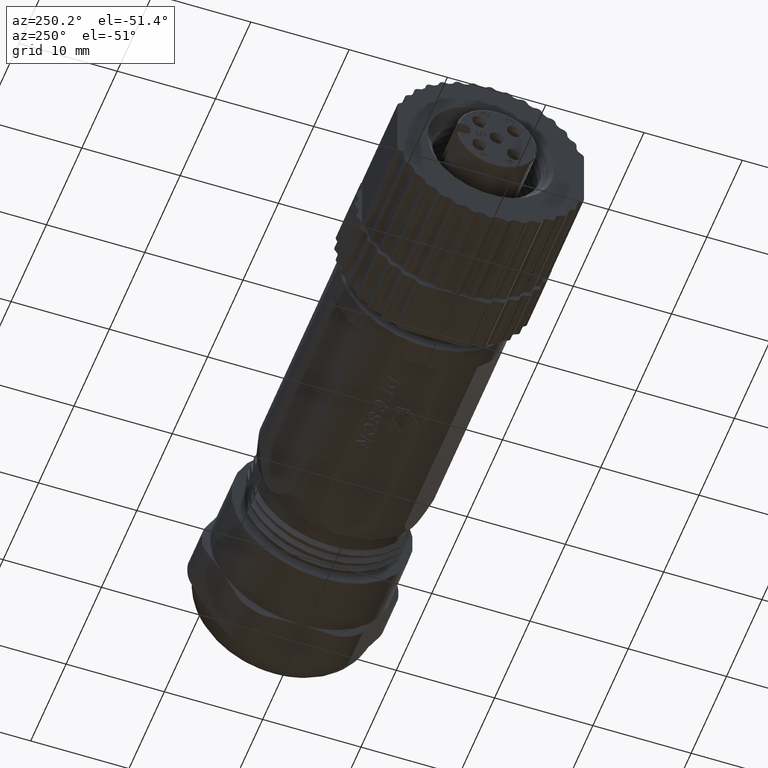
[diagram: clean part render]
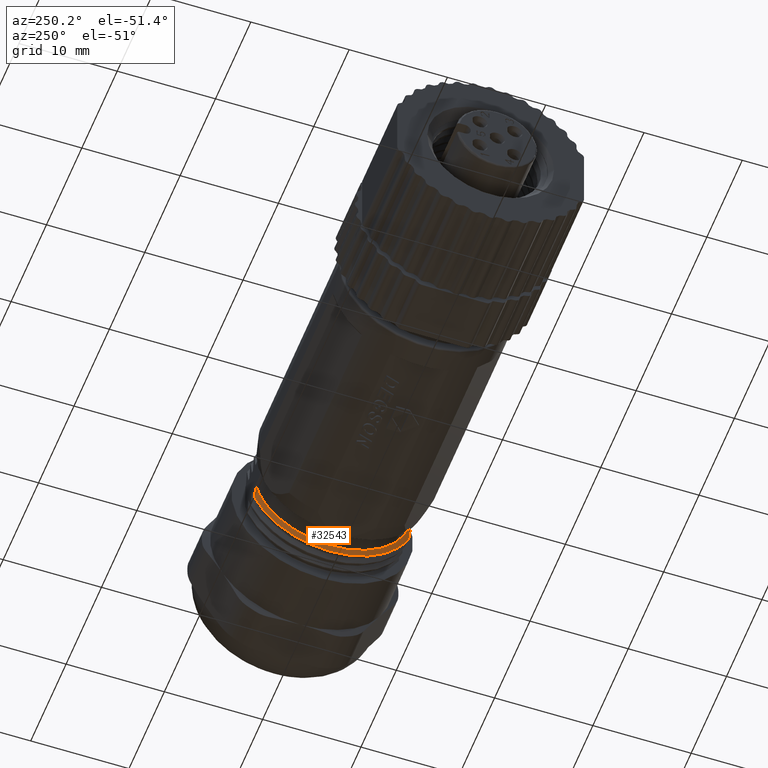
[diagram: same view with one face highlighted and labeled with its STEP entity id]
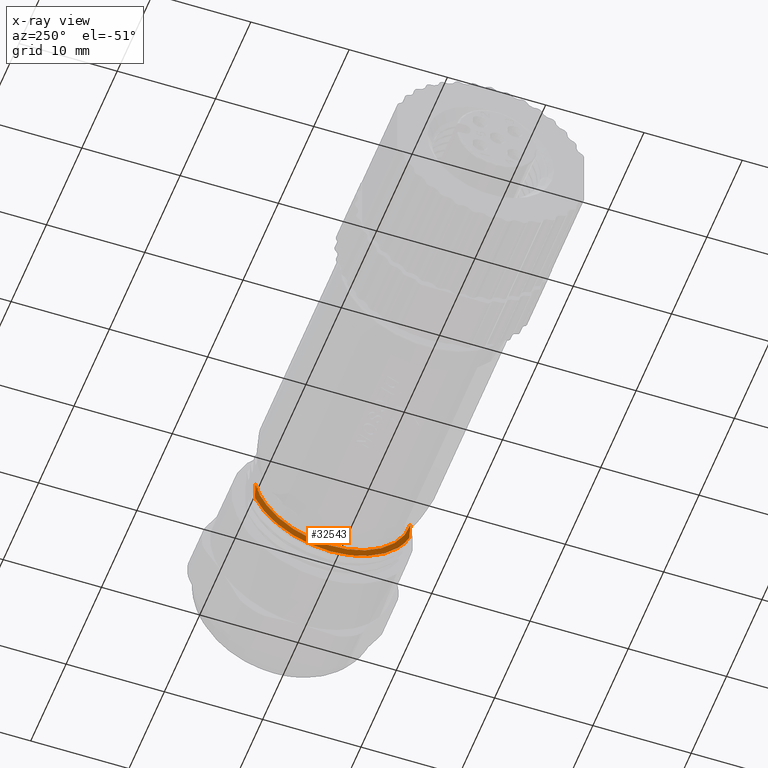
[diagram: x-ray of the same camera — body ghosted, the highlighted face saturated]
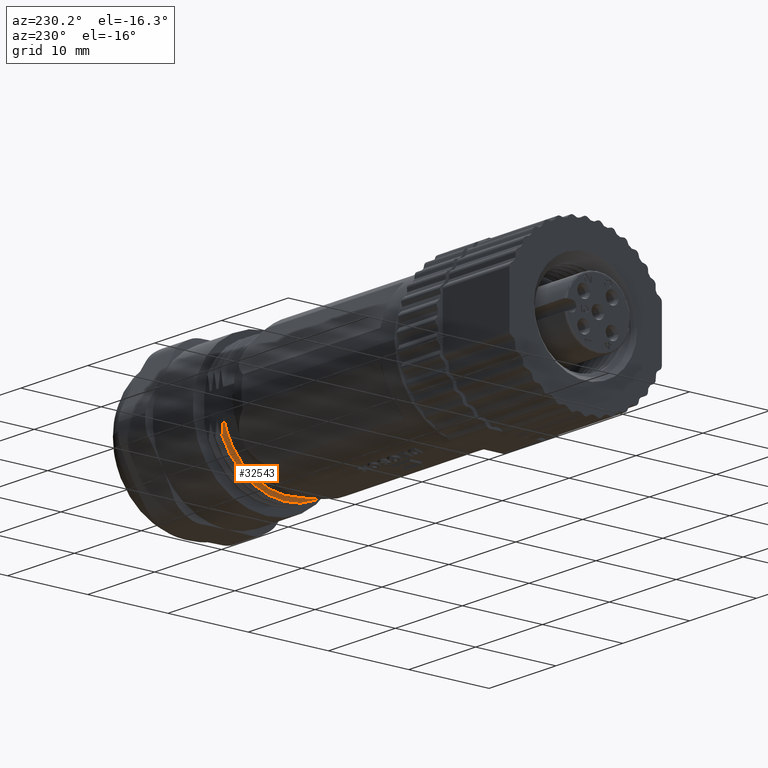
[diagram: same view with one face highlighted and labeled with its STEP entity id]
A machine part, auxiliary view. The second image highlights one B-rep face of the part: STEP entity #32543.
The next image is the same camera in x-ray: the body ghosted, the highlighted face saturated — about 0% of this face is hidden behind the body in this view.
A second angle (auxiliary view) of the same face is appended — the face is thin or edge-on in the first view.
In plain terms, the highlighted face is a freeform B-spline surface patch.
Its self-contained STEP definition (entity closure, byte-faithful):
#9730=CARTESIAN_POINT('',(3.988217319655E1,-7.8E0,-1.537042614894E0));
#9731=CARTESIAN_POINT('',(3.988622938492E1,-7.760827265154E0,
-1.735831723822E0));
#9732=CARTESIAN_POINT('',(3.989434176305E1,-7.667277161854E0,
-2.130413925739E0));
#9733=CARTESIAN_POINT('',(3.990651173885E1,-7.482124267198E0,
-2.709904072031E0));
#9734=CARTESIAN_POINT('',(3.991867890987E1,-7.253305691941E0,
-3.273430935080E0));
#9735=CARTESIAN_POINT('',(3.993084985475E1,-6.982023366341E0,
-3.817999617292E0));
#9736=CARTESIAN_POINT('',(3.994301607737E1,-6.670059743043E0,
-4.340054814193E0));
#9737=CARTESIAN_POINT('',(3.995518677476E1,-6.319003207922E0,
-4.836938348324E0));
#9738=CARTESIAN_POINT('',(3.996735319815E1,-5.931154682889E0,
-5.305391948316E0));
#9739=CARTESIAN_POINT('',(3.997952408130E1,-5.508502256607E0,
-5.743010569820E0));
#9740=CARTESIAN_POINT('',(3.999169032071E1,-5.053832469613E0,
-6.146916039850E0));
#9741=CARTESIAN_POINT('',(4.000386254210E1,-4.569398461834E0,
-6.515087306644E0));
#9742=CARTESIAN_POINT('',(4.001602751140E1,-4.058563086594E0,
-6.844987939677E0));
#9743=CARTESIAN_POINT('',(4.002820074232E1,-3.523657259895E0,
-7.135097202509E0));
#9744=CARTESIAN_POINT('',(4.004036474064E1,-2.968574920136E0,
-7.383314565797E0));
#9745=CARTESIAN_POINT('',(4.005253765957E1,-2.395736916434E0,
-7.588558784259E0));
#9746=CARTESIAN_POINT('',(4.006470187774E1,-1.809312547466E0,
-7.749332079425E0));
#9747=CARTESIAN_POINT('',(4.007687389480E1,-1.211940788953E0,
-7.864920629950E0));
#9748=CARTESIAN_POINT('',(4.008903893658E1,-6.078297982078E-1,
-7.934501901504E0));
#9749=CARTESIAN_POINT('',(4.010121118206E1,1.893232401141E-4,
-7.957749179066E0));
#9750=CARTESIAN_POINT('',(4.011337606241E1,6.078416686317E-1,
-7.934501376031E0));
#9751=CARTESIAN_POINT('',(4.012554883468E1,1.212333042196E0,-7.864860038075E0));
#9752=CARTESIAN_POINT('',(4.013771323851E1,1.809329975108E0,-7.749328641894E0));
#9753=CARTESIAN_POINT('',(4.014988567822E1,2.396144412082E0,-7.588430123898E0));
#9754=CARTESIAN_POINT('',(4.016205036354E1,2.968590565679E0,-7.383307561724E0));
#9755=CARTESIAN_POINT('',(4.017422204917E1,3.524016212142E0,-7.134920554828E0));
#9756=CARTESIAN_POINT('',(4.018638745382E1,4.058570672649E0,-6.844980941012E0));
#9757=CARTESIAN_POINT('',(4.019855837572E1,4.569649890642E0,-6.514912047774E0));
#9758=CARTESIAN_POINT('',(4.021072454159E1,5.053835034750E0,-6.146911558376E0));
#9759=CARTESIAN_POINT('',(4.022289532326E1,5.508669381048E0,-5.742851195466E0));
#9760=CARTESIAN_POINT('',(4.023506166433E1,5.931157192529E0,-5.305387840220E0));
#9761=CARTESIAN_POINT('',(4.024723198632E1,6.319124352631E0,-4.836780662389E0));
#9762=CARTESIAN_POINT('',(4.025939878099E1,6.670061689531E0,-4.340050770975E0));
#9763=CARTESIAN_POINT('',(4.027156853573E1,6.982110390090E0,-3.817841584621E0));
#9764=CARTESIAN_POINT('',(4.028373589679E1,7.253304800291E0,-3.273428595304E0));
#9765=CARTESIAN_POINT('',(4.029590521271E1,7.482162260395E0,-2.709802353349E0));
#9766=CARTESIAN_POINT('',(4.030807301947E1,7.667274703215E0,-2.130412779582E0));
#9767=CARTESIAN_POINT('',(4.031618539308E1,7.760827281311E0,-1.735831641828E0));
#9768=CARTESIAN_POINT('',(4.032024157978E1,7.8E0,-1.537042614894E0));
#9774=CARTESIAN_POINT('',(4.020014609491E1,-7.8E0,-3.239255699822E0));
#9775=CARTESIAN_POINT('',(4.016585541675E1,-7.8E0,-3.095680868034E0));
#9776=CARTESIAN_POINT('',(4.010103332037E1,-7.8E0,-2.809567760520E0));
#9777=CARTESIAN_POINT('',(4.001554252890E1,-7.8E0,-2.383919261880E0));
#9778=CARTESIAN_POINT('',(3.994183687573E1,-7.8E0,-1.960214144009E0));
#9779=CARTESIAN_POINT('',(3.990067697384E1,-7.8E0,-1.678006687287E0));
#9780=CARTESIAN_POINT('',(3.988217319655E1,-7.8E0,-1.537042614894E0));
#9782=CARTESIAN_POINT('',(4.032024157978E1,7.8E0,-1.537042614894E0));
#9783=CARTESIAN_POINT('',(4.033754809018E1,7.8E0,-1.725192886372E0));
#9784=CARTESIAN_POINT('',(4.037976631233E1,7.8E0,-2.102102249339E0));
#9785=CARTESIAN_POINT('',(4.046482379640E1,7.8E0,-2.667784027181E0));
#9786=CARTESIAN_POINT('',(4.053590271660E1,7.8E0,-3.048345134461E0));
#9787=CARTESIAN_POINT('',(4.057485396337E1,7.8E0,-3.239255699822E0));
#9797=CARTESIAN_POINT('',(4.057485396337E1,7.8E0,-3.239255699822E0));
#9798=CARTESIAN_POINT('',(4.057082463033E1,7.717991613891E0,-3.436728659948E0));
#9799=CARTESIAN_POINT('',(4.056276597054E1,7.538966277148E0,-3.825440649896E0));
#9800=CARTESIAN_POINT('',(4.055068081363E1,7.227047605830E0,-4.386329215333E0));
#9801=CARTESIAN_POINT('',(4.053859004785E1,6.873296944303E0,-4.922174725573E0));
#9802=CARTESIAN_POINT('',(4.052650742809E1,6.480183021217E0,-5.429302291855E0));
#9803=CARTESIAN_POINT('',(4.051441426540E1,6.049342047555E0,-5.905546787430E0));
#9804=CARTESIAN_POINT('',(4.050233379707E1,5.584102445986E0,-6.347274147383E0));
#9805=CARTESIAN_POINT('',(4.049023863573E1,5.086079898946E0,-6.752912000572E0));
#9806=CARTESIAN_POINT('',(4.047815992797E1,4.559434729092E0,-7.119103730022E0));
#9807=CARTESIAN_POINT('',(4.046606316764E1,4.005696514557E0,-7.444758675076E0));
#9808=CARTESIAN_POINT('',(4.045398582924E1,3.429770790188E0,-7.727014231369E0));
#9809=CARTESIAN_POINT('',(4.044188786966E1,2.833074492325E0,-7.965157386400E0));
#9810=CARTESIAN_POINT('',(4.042981150937E1,2.221120521648E0,-8.157002744279E0));
#9811=CARTESIAN_POINT('',(4.041771275029E1,1.595219799797E0,-8.302127674937E0));
#9812=CARTESIAN_POINT('',(4.040563697687E1,9.613139309936E-1,
-8.399163000157E0));
#9813=CARTESIAN_POINT('',(4.039353781804E1,3.206396883693E-1,
-8.447913772070E0));
#9814=CARTESIAN_POINT('',(4.038146224024E1,-3.206396883693E-1,
-8.447913772070E0));
#9815=CARTESIAN_POINT('',(4.036936308141E1,-9.613139309935E-1,
-8.399163000157E0));
#9816=CARTESIAN_POINT('',(4.035728730799E1,-1.595219799797E0,
-8.302127674937E0));
#9817=CARTESIAN_POINT('',(4.034518854891E1,-2.221120521648E0,
-8.157002744279E0));
#9818=CARTESIAN_POINT('',(4.033311218862E1,-2.833074492325E0,
-7.965157386400E0));
#9819=CARTESIAN_POINT('',(4.032101422904E1,-3.429770790188E0,
-7.727014231369E0));
#9820=CARTESIAN_POINT('',(4.030893689064E1,-4.005696514557E0,
-7.444758675076E0));
#9821=CARTESIAN_POINT('',(4.029684013031E1,-4.559434729092E0,
-7.119103730022E0));
#9822=CARTESIAN_POINT('',(4.028476142255E1,-5.086079898946E0,
-6.752912000572E0));
#9823=CARTESIAN_POINT('',(4.027266626121E1,-5.584102445986E0,
-6.347274147383E0));
#9824=CARTESIAN_POINT('',(4.026058579288E1,-6.049342047555E0,
-5.905546787430E0));
#9825=CARTESIAN_POINT('',(4.024849263019E1,-6.480183021217E0,
-5.429302291855E0));
#9826=CARTESIAN_POINT('',(4.023641001043E1,-6.873296944303E0,
-4.922174725573E0));
#9827=CARTESIAN_POINT('',(4.022431924465E1,-7.227047605830E0,
-4.386329215333E0));
#9828=CARTESIAN_POINT('',(4.021223408774E1,-7.538966277148E0,
-3.825440649896E0));
#9829=CARTESIAN_POINT('',(4.020417542795E1,-7.717991613891E0,
-3.436728659948E0));
#9830=CARTESIAN_POINT('',(4.020014609491E1,-7.8E0,-3.239255699822E0));
#22983=CARTESIAN_POINT('',(3.988217319655E1,-7.8E0,-1.537042614894E0));
#22985=VERTEX_POINT('',#22983);
#22999=CARTESIAN_POINT('',(4.032024157978E1,7.8E0,-1.537042614894E0));
#23001=VERTEX_POINT('',#22999);
#23015=VERTEX_POINT('',#9774);
#23022=VERTEX_POINT('',#9787);
#32491=CARTESIAN_POINT('',(4.029455798265E1,7.813673967045E0,
-1.097250053950E0));
#32492=CARTESIAN_POINT('',(4.027557501937E1,7.682801139150E0,
-2.029214107749E0));
#32493=CARTESIAN_POINT('',(4.023760909283E1,7.084048583254E0,
-3.845512941100E0));
#32494=CARTESIAN_POINT('',(4.018066020301E1,5.288513605630E0,
-6.083065129376E0));
#32495=CARTESIAN_POINT('',(4.012371131319E1,2.823063978705E0,
-7.549980643108E0));
#32496=CARTESIAN_POINT('',(4.006676242337E1,3.637090628672E-13,
-8.060519034801E0));
#32497=CARTESIAN_POINT('',(4.000981353355E1,-2.823063978704E0,
-7.549980643108E0));
#32498=CARTESIAN_POINT('',(3.995286464373E1,-5.288513605629E0,
-6.083065129376E0));
#32499=CARTESIAN_POINT('',(3.989591575391E1,-7.084048583254E0,
-3.845512941100E0));
#32500=CARTESIAN_POINT('',(3.985794982736E1,-7.682801139150E0,
-2.029214107750E0));
#32501=CARTESIAN_POINT('',(3.983896686409E1,-7.813673967045E0,
-1.097250053950E0));
#32502=CARTESIAN_POINT('',(4.041295217284E1,8.016746230992E0,
-1.125766863519E0));
#32503=CARTESIAN_POINT('',(4.039396920956E1,7.882472104098E0,
-2.081952052104E0));
#32504=CARTESIAN_POINT('',(4.035600328302E1,7.268158361802E0,
-3.945455301412E0));
#32505=CARTESIAN_POINT('',(4.029905439320E1,5.425958607219E0,
-6.241160004176E0));
#32506=CARTESIAN_POINT('',(4.024210550338E1,2.896433560780E0,
-7.746199690436E0));
#32507=CARTESIAN_POINT('',(4.018515661356E1,1.579744985990E-12,
-8.270006640233E0));
#32508=CARTESIAN_POINT('',(4.012820772374E1,-2.896433560777E0,
-7.746199690437E0));
#32509=CARTESIAN_POINT('',(4.007125883392E1,-5.425958607217E0,
-6.241160004178E0));
#32510=CARTESIAN_POINT('',(4.001430994410E1,-7.268158361801E0,
-3.945455301415E0));
#32511=CARTESIAN_POINT('',(3.997634401755E1,-7.882472104097E0,
-2.081952052107E0));
#32512=CARTESIAN_POINT('',(3.995736105428E1,-8.016746230991E0,
-1.125766863522E0));
#32513=CARTESIAN_POINT('',(4.053134636303E1,8.219818494934E0,
-1.154283673126E0));
#32514=CARTESIAN_POINT('',(4.051236339975E1,8.082143069036E0,
-2.134689996495E0));
#32515=CARTESIAN_POINT('',(4.047439747321E1,7.452268140332E0,
-4.045397661756E0));
#32516=CARTESIAN_POINT('',(4.041744858339E1,5.563403608783E0,
-6.399254878998E0));
#32517=CARTESIAN_POINT('',(4.036049969357E1,2.969803142826E0,
-7.942418737775E0));
#32518=CARTESIAN_POINT('',(4.030355080375E1,-2.523904137776E-11,
-8.479494245665E0));
#32519=CARTESIAN_POINT('',(4.024660191393E1,-2.969803142873E0,
-7.942418737757E0));
#32520=CARTESIAN_POINT('',(4.018965302411E1,-5.563403608820E0,
-6.399254878966E0));
#32521=CARTESIAN_POINT('',(4.013270413429E1,-7.452268140355E0,
-4.045397661713E0));
#32522=CARTESIAN_POINT('',(4.009473820774E1,-8.082143069048E0,
-2.134689996450E0));
#32523=CARTESIAN_POINT('',(4.007575524447E1,-8.219818494940E0,
-1.154283673081E0));
#32524=CARTESIAN_POINT('',(4.064974055322E1,8.422890758882E0,
-1.182800482690E0));
#32525=CARTESIAN_POINT('',(4.063075758994E1,8.281814033985E0,
-2.187427940844E0));
#32526=CARTESIAN_POINT('',(4.059279166340E1,7.636377918883E0,
-4.145340022063E0));
#32527=CARTESIAN_POINT('',(4.053584277358E1,5.700848610376E0,
-6.557349753795E0));
#32528=CARTESIAN_POINT('',(4.047889388376E1,3.043172724905E0,
-8.138637785102E0));
#32529=CARTESIAN_POINT('',(4.042194499394E1,-1.983557762486E-11,
-8.688981851098E0));
#32530=CARTESIAN_POINT('',(4.036499610412E1,-3.043172724942E0,
-8.138637785088E0));
#32531=CARTESIAN_POINT('',(4.030804721430E1,-5.700848610405E0,
-6.557349753770E0));
#32532=CARTESIAN_POINT('',(4.025109832448E1,-7.636377918901E0,
-4.145340022030E0));
#32533=CARTESIAN_POINT('',(4.021313239793E1,-8.281814033994E0,
-2.187427940809E0));
#32534=CARTESIAN_POINT('',(4.019414943466E1,-8.422890758887E0,
-1.182800482655E0));
#32535=B_SPLINE_SURFACE_WITH_KNOTS('',3,3,((#32491,#32492,#32493,#32494,#32495,
#32496,#32497,#32498,#32499,#32500,#32501),(#32502,#32503,#32504,#32505,#32506,
#32507,#32508,#32509,#32510,#32511,#32512),(#32513,#32514,#32515,#32516,#32517,
#32518,#32519,#32520,#32521,#32522,#32523),(#32524,#32525,#32526,#32527,#32528,
#32529,#32530,#32531,#32532,#32533,#32534)),.UNSPECIFIED.,.F.,.F.,.F.,(4,4),(4,
1,1,1,1,1,1,1,4),(-2.636081701417E-2,1.110223938749E0),(8.154903407718E-1,
8.325505104164E-1,8.496106800609E-1,8.666708497055E-1,8.837310193501E-1,
9.007911889947E-1,9.178513586392E-1,9.349115282838E-1,9.519716979284E-1),
.UNSPECIFIED.);
#32536=ORIENTED_EDGE('',*,*,#31062,.F.);
#32538=ORIENTED_EDGE('',*,*,#32537,.F.);
#32539=ORIENTED_EDGE('',*,*,#32451,.F.);
#32540=ORIENTED_EDGE('',*,*,#32484,.F.);
#32541=EDGE_LOOP('',(#32536,#32538,#32539,#32540));
#32542=FACE_OUTER_BOUND('',#32541,.F.);
#32543=ADVANCED_FACE('',(#32542),#32535,.T.);
#9769=B_SPLINE_CURVE_WITH_KNOTS('',3,(#9730,#9731,#9732,#9733,#9734,#9735,#9736,
#9737,#9738,#9739,#9740,#9741,#9742,#9743,#9744,#9745,#9746,#9747,#9748,#9749,
#9750,#9751,#9752,#9753,#9754,#9755,#9756,#9757,#9758,#9759,#9760,#9761,#9762,
#9763,#9764,#9765,#9766,#9767,#9768),.UNSPECIFIED.,.F.,.F.,(4,1,1,1,1,1,1,1,1,1,
1,1,1,1,1,1,1,1,1,1,1,1,1,1,1,1,1,1,1,1,1,1,1,1,1,1,4),(0.E0,2.777777777778E-2,
5.555555555556E-2,8.333333333333E-2,1.111111111111E-1,1.388888888889E-1,
1.666666666667E-1,1.944444444444E-1,2.222222222222E-1,2.5E-1,2.777777777778E-1,
3.055555555556E-1,3.333333333333E-1,3.611111111111E-1,3.888888888889E-1,
4.166666666667E-1,4.444444444444E-1,4.722222222222E-1,5.E-1,5.277777777778E-1,
5.555555555556E-1,5.833333333333E-1,6.111111111111E-1,6.388888888889E-1,
6.666666666667E-1,6.944444444444E-1,7.222222222222E-1,7.5E-1,7.777777777778E-1,
8.055555555556E-1,8.333333333333E-1,8.611111111111E-1,8.888888888889E-1,
9.166666666667E-1,9.444444444444E-1,9.722222222222E-1,1.E0),.UNSPECIFIED.);
#9781=B_SPLINE_CURVE_WITH_KNOTS('',3,(#9774,#9775,#9776,#9777,#9778,#9779,
#9780),.UNSPECIFIED.,.F.,.F.,(4,1,1,1,4),(0.E0,2.5E-1,5.E-1,7.5E-1,1.E0),
.UNSPECIFIED.);
#9788=B_SPLINE_CURVE_WITH_KNOTS('',3,(#9782,#9783,#9784,#9785,#9786,#9787),
.UNSPECIFIED.,.F.,.F.,(4,1,1,4),(0.E0,3.333333333333E-1,6.666666666667E-1,1.E0),
.UNSPECIFIED.);
#9831=B_SPLINE_CURVE_WITH_KNOTS('',3,(#9797,#9798,#9799,#9800,#9801,#9802,#9803,
#9804,#9805,#9806,#9807,#9808,#9809,#9810,#9811,#9812,#9813,#9814,#9815,#9816,
#9817,#9818,#9819,#9820,#9821,#9822,#9823,#9824,#9825,#9826,#9827,#9828,#9829,
#9830),.UNSPECIFIED.,.F.,.F.,(4,1,1,1,1,1,1,1,1,1,1,1,1,1,1,1,1,1,1,1,1,1,1,1,1,
1,1,1,1,1,1,4),(0.E0,3.225806451613E-2,6.451612903226E-2,9.677419354839E-2,
1.290322580645E-1,1.612903225806E-1,1.935483870968E-1,2.258064516129E-1,
2.580645161290E-1,2.903225806452E-1,3.225806451613E-1,3.548387096774E-1,
3.870967741935E-1,4.193548387097E-1,4.516129032258E-1,4.838709677419E-1,
5.161290322581E-1,5.483870967742E-1,5.806451612903E-1,6.129032258065E-1,
6.451612903226E-1,6.774193548387E-1,7.096774193548E-1,7.419354838710E-1,
7.741935483871E-1,8.064516129032E-1,8.387096774194E-1,8.709677419355E-1,
9.032258064516E-1,9.354838709677E-1,9.677419354839E-1,1.E0),.UNSPECIFIED.);
#31062=EDGE_CURVE('',#23015,#22985,#9781,.T.);
#32451=EDGE_CURVE('',#23001,#23022,#9788,.T.);
#32484=EDGE_CURVE('',#22985,#23001,#9769,.T.);
#32537=EDGE_CURVE('',#23022,#23015,#9831,.T.);